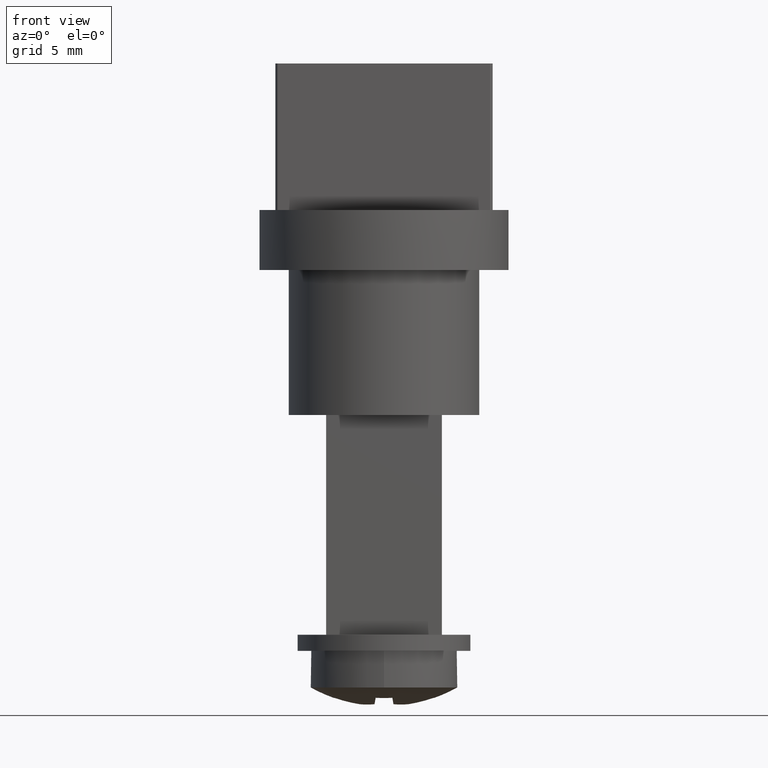
[diagram: clean part render]
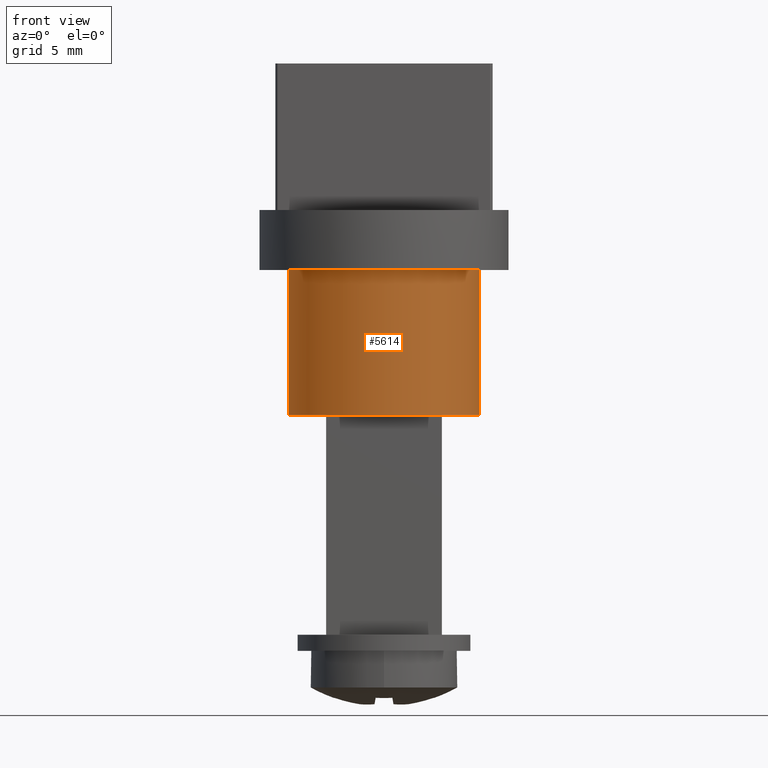
[diagram: same view with one face highlighted and labeled with its STEP entity id]
A machine part, front view. The second image highlights one B-rep face of the part: STEP entity #5614.
In plain terms, the highlighted cylindrical surface (partial cylindrical patch) has radius 6.5 mm, axis along (0, 0, 1).
Its self-contained STEP definition (entity closure, byte-faithful):
#47 = DIRECTION ( 'NONE',  ( -0.000000000000000000, -0.000000000000000000, 1.000000000000000000 ) ) ;
#109 = CARTESIAN_POINT ( 'NONE',  ( -6.500000000000000000, 7.960204194457795477E-16, 0.000000000000000000 ) ) ;
#324 = VECTOR ( 'NONE', #13762, 1000.000000000000000 ) ;
#422 = CARTESIAN_POINT ( 'NONE',  ( 6.500000000000000000, 0.000000000000000000, -7.000000000000000000 ) ) ;
#910 = EDGE_CURVE ( 'NONE', #6130, #5585, #16097, .T. ) ;
#1001 = CYLINDRICAL_SURFACE ( 'NONE', #15661, 6.500000000000000000 ) ;
#1267 = CARTESIAN_POINT ( 'NONE',  ( 0.000000000000000000, 0.000000000000000000, -7.000000000000000000 ) ) ;
#1977 = VERTEX_POINT ( 'NONE', #8219 ) ;
#2288 = VECTOR ( 'NONE', #47, 1000.000000000000000 ) ;
#2448 = LINE ( 'NONE', #6161, #324 ) ;
#2744 = EDGE_CURVE ( 'NONE', #1977, #10449, #10719, .T. ) ;
#3722 = CARTESIAN_POINT ( 'NONE',  ( -6.500000000000000000, 7.960204194457795477E-16, -7.000000000000000000 ) ) ;
#5532 = DIRECTION ( 'NONE',  ( -0.000000000000000000, -0.000000000000000000, 1.000000000000000000 ) ) ;
#5585 = VERTEX_POINT ( 'NONE', #422 ) ;
#5614 = ADVANCED_FACE ( 'NONE', ( #5738 ), #1001, .T. ) ;
#5738 = FACE_OUTER_BOUND ( 'NONE', #9690, .T. ) ;
#6130 = VERTEX_POINT ( 'NONE', #3722 ) ;
#6161 = CARTESIAN_POINT ( 'NONE',  ( 6.500000000000000000, 0.000000000000000000, 0.000000000000000000 ) ) ;
#7549 = ORIENTED_EDGE ( 'NONE', *, *, #910, .T. ) ;
#8219 = CARTESIAN_POINT ( 'NONE',  ( -6.500000000000000000, 7.960204194457795477E-16, 2.900000000000000799 ) ) ;
#8770 = LINE ( 'NONE', #109, #2288 ) ;
#9193 = ORIENTED_EDGE ( 'NONE', *, *, #9557, .F. ) ;
#9349 = DIRECTION ( 'NONE',  ( 1.000000000000000000, 0.000000000000000000, 0.000000000000000000 ) ) ;
#9518 = DIRECTION ( 'NONE',  ( -0.000000000000000000, -0.000000000000000000, 1.000000000000000000 ) ) ;
#9557 = EDGE_CURVE ( 'NONE', #6130, #1977, #8770, .T. ) ;
#9690 = EDGE_LOOP ( 'NONE', ( #9193, #7549, #10285, #11111 ) ) ;
#10135 = DIRECTION ( 'NONE',  ( -0.000000000000000000, -0.000000000000000000, 1.000000000000000000 ) ) ;
#10285 = ORIENTED_EDGE ( 'NONE', *, *, #11245, .T. ) ;
#10449 = VERTEX_POINT ( 'NONE', #14459 ) ;
#10719 = CIRCLE ( 'NONE', #15767, 6.500000000000000000 ) ;
#10730 = AXIS2_PLACEMENT_3D ( 'NONE', #1267, #10135, #11295 ) ;
#10806 = CARTESIAN_POINT ( 'NONE',  ( 0.000000000000000000, 0.000000000000000000, 0.000000000000000000 ) ) ;
#11111 = ORIENTED_EDGE ( 'NONE', *, *, #2744, .F. ) ;
#11245 = EDGE_CURVE ( 'NONE', #5585, #10449, #2448, .T. ) ;
#11295 = DIRECTION ( 'NONE',  ( 1.000000000000000000, 0.000000000000000000, 0.000000000000000000 ) ) ;
#12972 = CARTESIAN_POINT ( 'NONE',  ( 0.000000000000000000, 0.000000000000000000, 2.900000000000000799 ) ) ;
#13036 = DIRECTION ( 'NONE',  ( 1.000000000000000000, 0.000000000000000000, 0.000000000000000000 ) ) ;
#13762 = DIRECTION ( 'NONE',  ( -0.000000000000000000, -0.000000000000000000, 1.000000000000000000 ) ) ;
#14459 = CARTESIAN_POINT ( 'NONE',  ( 6.500000000000000000, 0.000000000000000000, 2.900000000000000799 ) ) ;
#15661 = AXIS2_PLACEMENT_3D ( 'NONE', #10806, #9518, #9349 ) ;
#15767 = AXIS2_PLACEMENT_3D ( 'NONE', #12972, #5532, #13036 ) ;
#16097 = CIRCLE ( 'NONE', #10730, 6.500000000000000000 ) ;